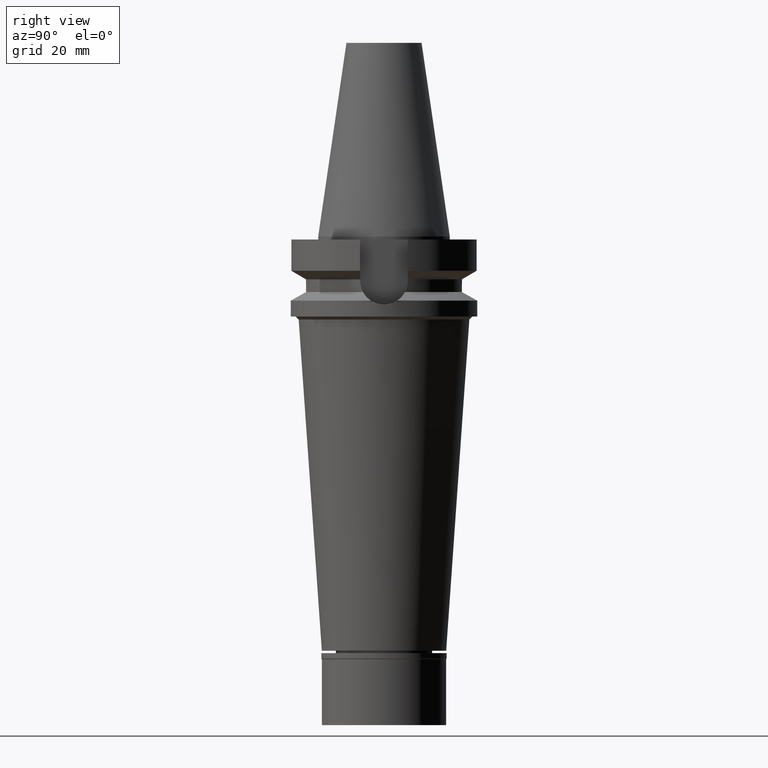
[diagram: clean part render]
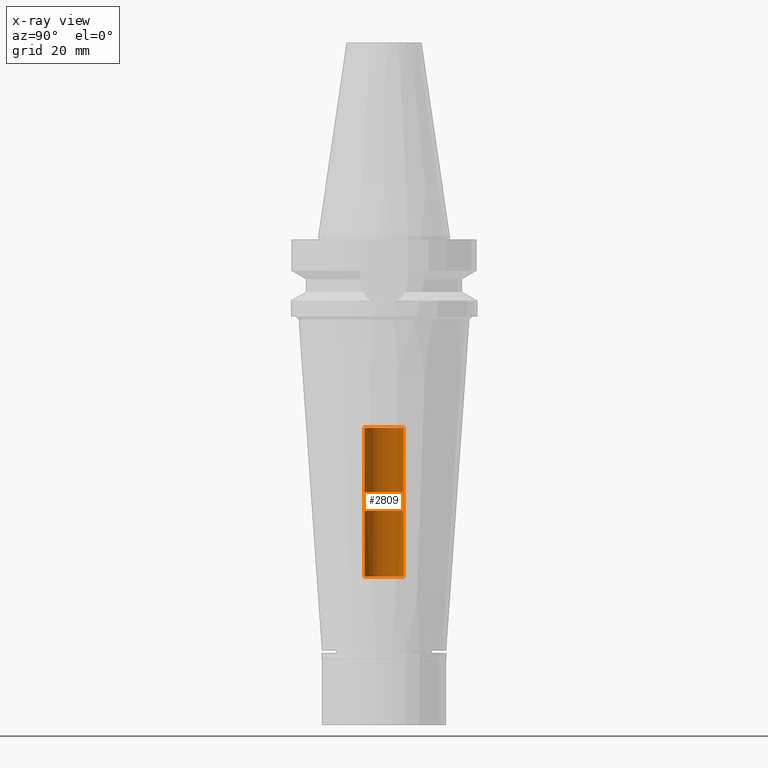
[diagram: x-ray — body ghosted, one internal face saturated and labeled with its STEP entity id]
A machine part, right view, then the same camera in x-ray: the body is ghosted and one INTERNAL B-rep face — a face not visible from any outside direction — is saturated and labeled: STEP entity #2809.
In plain terms, the highlighted cylindrical surface (edge-blend (fillet) strip) has radius 6.65 mm, axis along (0, 0, -1).
Its self-contained STEP definition (entity closure, byte-faithful):
#58 = VECTOR ( 'NONE', #1700, 1000.000000000000000 ) ;
#89 = EDGE_CURVE ( 'NONE', #1835, #959, #2670, .T. ) ;
#314 = CARTESIAN_POINT ( 'NONE',  ( 0.0000000000000000000, 6.649999999999999467, -114.7999999999999972 ) ) ;
#385 = CYLINDRICAL_SURFACE ( 'NONE', #2045, 6.649999999999999467 ) ;
#408 = DIRECTION ( 'NONE',  ( 0.0000000000000000000, 1.000000000000000000, 0.0000000000000000000 ) ) ;
#443 = DIRECTION ( 'NONE',  ( 0.0000000000000000000, 0.0000000000000000000, 1.000000000000000000 ) ) ;
#526 = CARTESIAN_POINT ( 'NONE',  ( 0.0000000000000000000, 6.649999999999999467, -64.60000000000000853 ) ) ;
#691 = CARTESIAN_POINT ( 'NONE',  ( 0.0000000000000000000, 2.162052691555000099E-14, 76.54500000000000171 ) ) ;
#702 = CARTESIAN_POINT ( 'NONE',  ( 0.0000000000000000000, 2.162052691555000099E-14, -114.7999999999999972 ) ) ;
#705 = ORIENTED_EDGE ( 'NONE', *, *, #2724, .T. ) ;
#721 = LINE ( 'NONE', #2624, #58 ) ;
#959 = VERTEX_POINT ( 'NONE', #1205 ) ;
#974 = DIRECTION ( 'NONE',  ( 0.0000000000000000000, 0.0000000000000000000, -1.000000000000000000 ) ) ;
#1053 = ORIENTED_EDGE ( 'NONE', *, *, #2060, .T. ) ;
#1065 = VECTOR ( 'NONE', #443, 1000.000000000000000 ) ;
#1096 = ORIENTED_EDGE ( 'NONE', *, *, #89, .F. ) ;
#1205 = CARTESIAN_POINT ( 'NONE',  ( 0.0000000000000000000, -6.649999999999999467, -64.60000000000000853 ) ) ;
#1373 = EDGE_CURVE ( 'NONE', #2960, #959, #2394, .T. ) ;
#1389 = CARTESIAN_POINT ( 'NONE',  ( 0.0000000000000000000, -6.649999999999999467, -114.7999999999999972 ) ) ;
#1488 = EDGE_LOOP ( 'NONE', ( #1914, #1096, #705, #1053 ) ) ;
#1610 = DIRECTION ( 'NONE',  ( 0.0000000000000000000, 0.0000000000000000000, 1.000000000000000000 ) ) ;
#1700 = DIRECTION ( 'NONE',  ( 0.0000000000000000000, 0.0000000000000000000, 1.000000000000000000 ) ) ;
#1784 = AXIS2_PLACEMENT_3D ( 'NONE', #702, #974, #2630 ) ;
#1835 = VERTEX_POINT ( 'NONE', #1389 ) ;
#1888 = CIRCLE ( 'NONE', #1784, 6.649999999999999467 ) ;
#1914 = ORIENTED_EDGE ( 'NONE', *, *, #1373, .T. ) ;
#2045 = AXIS2_PLACEMENT_3D ( 'NONE', #691, #2794, #2858 ) ;
#2060 = EDGE_CURVE ( 'NONE', #2260, #2960, #721, .T. ) ;
#2260 = VERTEX_POINT ( 'NONE', #314 ) ;
#2394 = CIRCLE ( 'NONE', #2791, 6.649999999999999467 ) ;
#2560 = FACE_OUTER_BOUND ( 'NONE', #1488, .T. ) ;
#2614 = CARTESIAN_POINT ( 'NONE',  ( 0.0000000000000000000, -6.649999999999999467, -114.7999999999999972 ) ) ;
#2624 = CARTESIAN_POINT ( 'NONE',  ( 0.0000000000000000000, 6.649999999999999467, -114.7999999999999972 ) ) ;
#2630 = DIRECTION ( 'NONE',  ( 0.0000000000000000000, -1.000000000000000000, 0.0000000000000000000 ) ) ;
#2670 = LINE ( 'NONE', #2614, #1065 ) ;
#2724 = EDGE_CURVE ( 'NONE', #1835, #2260, #1888, .T. ) ;
#2791 = AXIS2_PLACEMENT_3D ( 'NONE', #2831, #1610, #408 ) ;
#2794 = DIRECTION ( 'NONE',  ( 0.0000000000000000000, 0.0000000000000000000, -1.000000000000000000 ) ) ;
#2809 = ADVANCED_FACE ( 'NONE', ( #2560 ), #385, .F. ) ;
#2831 = CARTESIAN_POINT ( 'NONE',  ( 0.0000000000000000000, 2.162052691555000099E-14, -64.60000000000000853 ) ) ;
#2858 = DIRECTION ( 'NONE',  ( 0.0000000000000000000, -1.000000000000000000, 0.0000000000000000000 ) ) ;
#2960 = VERTEX_POINT ( 'NONE', #526 ) ;